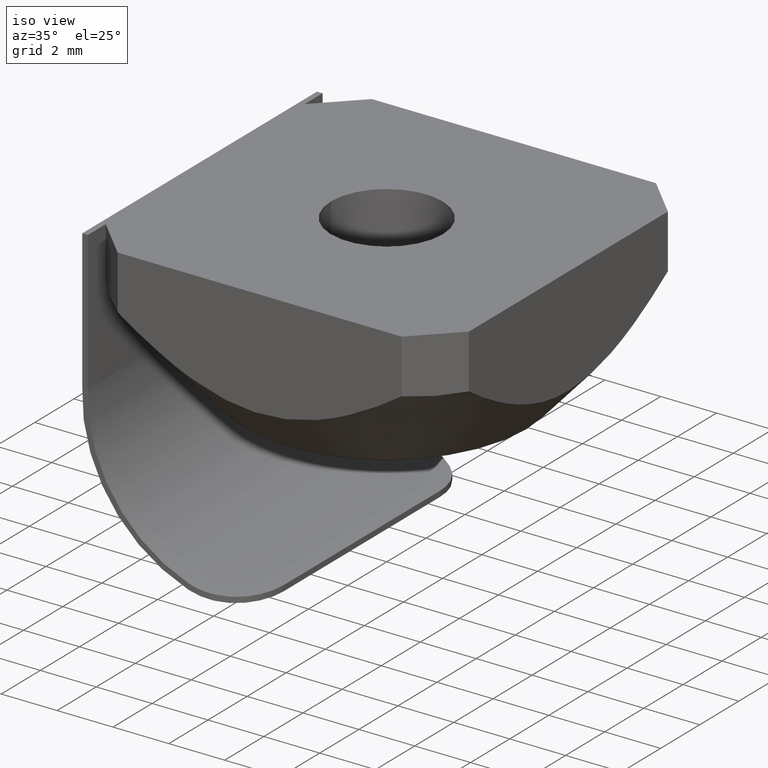
[diagram: clean part render]
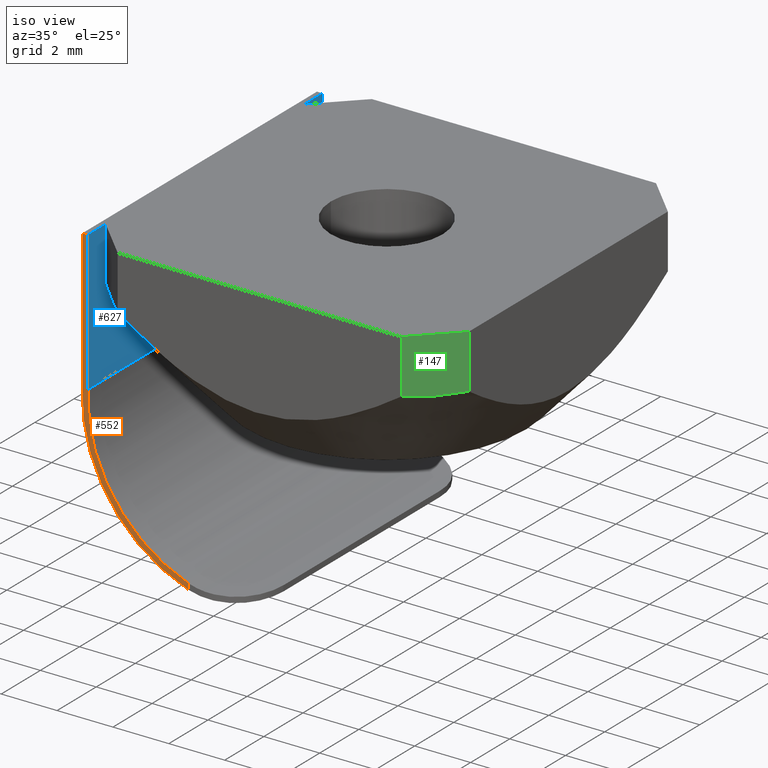
[diagram: same view with three faces highlighted in distinct colors, each labeled with its STEP entity id]
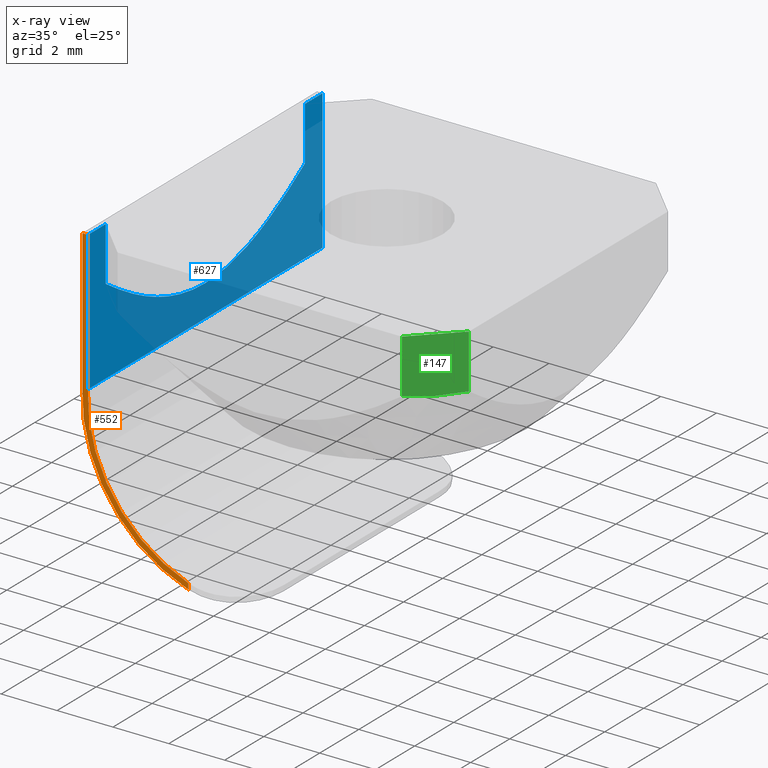
[diagram: x-ray of the same camera — body ghosted, the three highlighted faces saturated]
A machine part, iso view with three faces highlighted in distinct colors.
The next image is the same camera in x-ray (body ghosted, the three faces saturated) — at least one of them is partly hidden behind the body in this view.
Their STEP definitions:

[orange] entity #552 — the highlighted planar face has unit normal (0, 1, 0).
#46 = PLANE ( 'NONE',  #790 ) ;
#88 = EDGE_CURVE ( 'NONE', #795, #431, #632, .T. ) ;
#110 = AXIS2_PLACEMENT_3D ( 'NONE', #612, #556, #348 ) ;
#130 = CARTESIAN_POINT ( 'NONE',  ( -6.700000000000000178, -6.000000000000000888, 0.0000000000000000000 ) ) ;
#154 = CARTESIAN_POINT ( 'NONE',  ( -6.500000000000000888, -6.000000000000000888, -5.000000000000007105 ) ) ;
#178 = CARTESIAN_POINT ( 'NONE',  ( -2.899999999999090861, -6.000000000000000888, -10.30533168883703432 ) ) ;
#179 = ORIENTED_EDGE ( 'NONE', *, *, #830, .F. ) ;
#184 = VECTOR ( 'NONE', #656, 1000.000000000000000 ) ;
#203 = ORIENTED_EDGE ( 'NONE', *, *, #647, .F. ) ;
#234 = ORIENTED_EDGE ( 'NONE', *, *, #867, .F. ) ;
#245 = DIRECTION ( 'NONE',  ( 0.0000000000000000000, -0.0000000000000000000, 1.000000000000000000 ) ) ;
#254 = ORIENTED_EDGE ( 'NONE', *, *, #88, .F. ) ;
#325 = CARTESIAN_POINT ( 'NONE',  ( -6.700000000000000178, -6.000000000000000888, -4.999999999999985789 ) ) ;
#348 = DIRECTION ( 'NONE',  ( 0.0000000000000000000, 0.0000000000000000000, 1.000000000000000000 ) ) ;
#380 = VERTEX_POINT ( 'NONE', #505 ) ;
#402 = DIRECTION ( 'NONE',  ( 0.0000000000000000000, 0.0000000000000000000, 1.000000000000000000 ) ) ;
#406 = DIRECTION ( 'NONE',  ( 1.000000000000000000, 0.0000000000000000000, -0.0000000000000000000 ) ) ;
#431 = VERTEX_POINT ( 'NONE', #178 ) ;
#455 = CARTESIAN_POINT ( 'NONE',  ( -6.700000000000000178, -6.000000000000000888, 0.0000000000000000000 ) ) ;
#476 = CIRCLE ( 'NONE', #110, 5.574159195229042574 ) ;
#505 = CARTESIAN_POINT ( 'NONE',  ( -6.500000000000001776, -6.000000000000000888, 0.0000000000000000000 ) ) ;
#508 = EDGE_CURVE ( 'NONE', #380, #795, #650, .T. ) ;
#516 = CARTESIAN_POINT ( 'NONE',  ( -2.899999999999090861, -6.000000000000000888, -10.51649273543432273 ) ) ;
#524 = ORIENTED_EDGE ( 'NONE', *, *, #508, .F. ) ;
#525 = CARTESIAN_POINT ( 'NONE',  ( -5.221683483938816650, -6.000000000000000888, -6.411504627746288598 ) ) ;
#531 = FACE_OUTER_BOUND ( 'NONE', #870, .T. ) ;
#534 = VERTEX_POINT ( 'NONE', #455 ) ;
#548 = DIRECTION ( 'NONE',  ( -0.0000000000000000000, -1.000000000000000000, -0.0000000000000000000 ) ) ;
#552 = ADVANCED_FACE ( 'NONE', ( #531 ), #46, .F. ) ;
#556 = DIRECTION ( 'NONE',  ( 0.0000000000000000000, 1.000000000000000000, 0.0000000000000000000 ) ) ;
#566 = VECTOR ( 'NONE', #402, 1000.000000000000000 ) ;
#576 = VERTEX_POINT ( 'NONE', #325 ) ;
#584 = LINE ( 'NONE', #130, #566 ) ;
#588 = DIRECTION ( 'NONE',  ( 0.0000000000000000000, 1.000000000000000000, 0.0000000000000000000 ) ) ;
#599 = VERTEX_POINT ( 'NONE', #516 ) ;
#612 = CARTESIAN_POINT ( 'NONE',  ( -1.130613297613433987, -6.000000000000000888, -5.230613297613471602 ) ) ;
#632 = CIRCLE ( 'NONE', #679, 5.374336801206437642 ) ;
#647 = EDGE_CURVE ( 'NONE', #431, #599, #743, .T. ) ;
#650 = LINE ( 'NONE', #861, #184 ) ;
#653 = ORIENTED_EDGE ( 'NONE', *, *, #662, .F. ) ;
#656 = DIRECTION ( 'NONE',  ( 0.0000000000000000000, 0.0000000000000000000, -1.000000000000000000 ) ) ;
#662 = EDGE_CURVE ( 'NONE', #576, #534, #584, .T. ) ;
#679 = AXIS2_PLACEMENT_3D ( 'NONE', #818, #548, #689 ) ;
#689 = DIRECTION ( 'NONE',  ( 0.0000000000000000000, 0.0000000000000000000, 1.000000000000000000 ) ) ;
#700 = VECTOR ( 'NONE', #885, 1000.000000000000000 ) ;
#743 = LINE ( 'NONE', #817, #700 ) ;
#790 = AXIS2_PLACEMENT_3D ( 'NONE', #525, #588, #245 ) ;
#795 = VERTEX_POINT ( 'NONE', #154 ) ;
#798 = VECTOR ( 'NONE', #406, 1000.000000000000000 ) ;
#817 = CARTESIAN_POINT ( 'NONE',  ( -2.899999999999091749, -6.000000000000000888, -8.605752313873143322 ) ) ;
#818 = CARTESIAN_POINT ( 'NONE',  ( -1.130613297613433987, -6.000000000000000888, -5.230613297613471602 ) ) ;
#820 = CARTESIAN_POINT ( 'NONE',  ( -5.221683483938816650, -6.000000000000000888, 0.0000000000000000000 ) ) ;
#830 = EDGE_CURVE ( 'NONE', #599, #576, #476, .T. ) ;
#845 = LINE ( 'NONE', #820, #798 ) ;
#861 = CARTESIAN_POINT ( 'NONE',  ( -6.500000000000000888, -6.000000000000000888, -4.999999999999999112 ) ) ;
#867 = EDGE_CURVE ( 'NONE', #534, #380, #845, .T. ) ;
#870 = EDGE_LOOP ( 'NONE', ( #254, #524, #234, #653, #179, #203 ) ) ;
#885 = DIRECTION ( 'NONE',  ( 0.0000000000000000000, 0.0000000000000000000, -1.000000000000000000 ) ) ;

[blue] entity #627 — the highlighted planar face has unit normal (1, -0, 0).
#26 = CARTESIAN_POINT ( 'NONE',  ( -6.500000000000000888, 3.064398180133085755E-15, -3.855463141347039269 ) ) ;
#31 = CARTESIAN_POINT ( 'NONE',  ( -6.500000000000002665, -4.314590746540053701, -2.436610204660846879 ) ) ;
#36 = CARTESIAN_POINT ( 'NONE',  ( -6.499999999999999112, 5.085786437626910406, 0.0000000000000000000 ) ) ;
#43 = VERTEX_POINT ( 'NONE', #335 ) ;
#52 = VECTOR ( 'NONE', #109, 1000.000000000000000 ) ;
#63 = CARTESIAN_POINT ( 'NONE',  ( -6.500000000000001776, 3.107041528813947462, -3.094886144136435480 ) ) ;
#64 = LINE ( 'NONE', #607, #199 ) ;
#66 = LINE ( 'NONE', #422, #421 ) ;
#77 = DIRECTION ( 'NONE',  ( -0.0000000000000000000, -1.000000000000000000, -0.0000000000000000000 ) ) ;
#81 = ORIENTED_EDGE ( 'NONE', *, *, #637, .T. ) ;
#109 = DIRECTION ( 'NONE',  ( -0.0000000000000000000, -1.000000000000000000, -0.0000000000000000000 ) ) ;
#118 = DIRECTION ( 'NONE',  ( 0.0000000000000000000, 1.000000000000000000, 0.0000000000000000000 ) ) ;
#123 = DIRECTION ( 'NONE',  ( 0.0000000000000000000, 0.0000000000000000000, -1.000000000000000000 ) ) ;
#132 = CARTESIAN_POINT ( 'NONE',  ( -6.500000000000000888, 2.258115939526438520, -3.449951148689369695 ) ) ;
#154 = CARTESIAN_POINT ( 'NONE',  ( -6.500000000000000888, -6.000000000000000888, -5.000000000000007105 ) ) ;
#160 = CARTESIAN_POINT ( 'NONE',  ( -6.500000000000000888, 3.064398180133085755E-15, -3.855463141347039269 ) ) ;
#161 = VECTOR ( 'NONE', #118, 1000.000000000000000 ) ;
#175 = CARTESIAN_POINT ( 'NONE',  ( -6.500000000000000888, 0.0000000000000000000, 0.0000000000000000000 ) ) ;
#184 = VECTOR ( 'NONE', #656, 1000.000000000000000 ) ;
#190 = EDGE_CURVE ( 'NONE', #827, #453, #429, .T. ) ;
#199 = VECTOR ( 'NONE', #813, 1000.000000000000000 ) ;
#204 = B_SPLINE_CURVE_WITH_KNOTS ( 'NONE', 3,
 ( #807, #887, #746, #395, #132, #63, #460, #462, #457, #610 ),
 .UNSPECIFIED., .F., .F.,
 ( 4, 2, 2, 2, 4 ),
 ( 0.005500282510485713164, 0.006875464031092158763, 0.008250645551698604363, 0.009625827072305050830, 0.01100100859291149556 ),
 .UNSPECIFIED. ) ;
#205 = EDGE_CURVE ( 'NONE', #303, #674, #268, .T. ) ;
#211 = ORIENTED_EDGE ( 'NONE', *, *, #205, .F. ) ;
#220 = LINE ( 'NONE', #175, #52 ) ;
#228 = CARTESIAN_POINT ( 'NONE',  ( -6.500000000000000888, -3.107104350552365002, -3.094856037944705207 ) ) ;
#235 = CARTESIAN_POINT ( 'NONE',  ( -6.500000000000001776, -2.258188599350608339, -3.449924588806682735 ) ) ;
#253 = VECTOR ( 'NONE', #77, 1000.000000000000000 ) ;
#265 = CARTESIAN_POINT ( 'NONE',  ( -6.499999993186322378, -5.085786460416152899, -1.933334192774046389 ) ) ;
#268 = LINE ( 'NONE', #351, #521 ) ;
#292 = ORIENTED_EDGE ( 'NONE', *, *, #723, .F. ) ;
#300 = EDGE_CURVE ( 'NONE', #374, #453, #66, .T. ) ;
#303 = VERTEX_POINT ( 'NONE', #357 ) ;
#308 = FACE_OUTER_BOUND ( 'NONE', #703, .T. ) ;
#313 = PLANE ( 'NONE',  #358 ) ;
#316 = CARTESIAN_POINT ( 'NONE',  ( -6.500000000000000888, 0.0000000000000000000, -4.999999999999999112 ) ) ;
#323 = CARTESIAN_POINT ( 'NONE',  ( -6.500000000000000888, 0.0000000000000000000, -4.999999999999999112 ) ) ;
#335 = CARTESIAN_POINT ( 'NONE',  ( -6.500000000000000888, 6.000000000000000888, -5.000000000000007105 ) ) ;
#345 = ORIENTED_EDGE ( 'NONE', *, *, #300, .F. ) ;
#351 = CARTESIAN_POINT ( 'NONE',  ( -6.500000000000000888, -5.085786437626906853, 0.0000000000000000000 ) ) ;
#356 = DIRECTION ( 'NONE',  ( 0.0000000000000000000, 0.0000000000000000000, 1.000000000000000000 ) ) ;
#357 = CARTESIAN_POINT ( 'NONE',  ( -6.500000000000001776, -5.085786437626905965, 0.0000000000000000000 ) ) ;
#358 = AXIS2_PLACEMENT_3D ( 'NONE', #316, #381, #123 ) ;
#365 = ORIENTED_EDGE ( 'NONE', *, *, #680, .T. ) ;
#374 = VERTEX_POINT ( 'NONE', #777 ) ;
#380 = VERTEX_POINT ( 'NONE', #505 ) ;
#381 = DIRECTION ( 'NONE',  ( 1.000000000000000000, -0.0000000000000000000, 0.0000000000000000000 ) ) ;
#395 = CARTESIAN_POINT ( 'NONE',  ( -6.500000000000000000, 1.815600802417214776, -3.598271844878063952 ) ) ;
#421 = VECTOR ( 'NONE', #356, 1000.000000000000000 ) ;
#422 = CARTESIAN_POINT ( 'NONE',  ( -6.499999999999999112, 5.085786437626910406, 0.0000000000000000000 ) ) ;
#427 = EDGE_CURVE ( 'NONE', #674, #838, #665, .T. ) ;
#429 = LINE ( 'NONE', #482, #253 ) ;
#432 = CARTESIAN_POINT ( 'NONE',  ( -6.500000000000000888, -1.815724355571117998, -3.598234518682033478 ) ) ;
#435 = CARTESIAN_POINT ( 'NONE',  ( -6.499999999966563635, -4.703623663799145760, -2.191522623682523818 ) ) ;
#443 = ORIENTED_EDGE ( 'NONE', *, *, #447, .T. ) ;
#447 = EDGE_CURVE ( 'NONE', #303, #380, #220, .T. ) ;
#453 = VERTEX_POINT ( 'NONE', #36 ) ;
#454 = ORIENTED_EDGE ( 'NONE', *, *, #508, .T. ) ;
#457 = CARTESIAN_POINT ( 'NONE',  ( -6.500000000000000888, 4.703607865908491448, -2.191533292728968352 ) ) ;
#460 = CARTESIAN_POINT ( 'NONE',  ( -6.500000000000000888, 3.516244414295480958, -2.888242049458875194 ) ) ;
#462 = CARTESIAN_POINT ( 'NONE',  ( -6.500000000000000000, 4.314560767063976066, -2.436628929867394877 ) ) ;
#482 = CARTESIAN_POINT ( 'NONE',  ( -6.500000000000000888, 0.0000000000000000000, 0.0000000000000000000 ) ) ;
#505 = CARTESIAN_POINT ( 'NONE',  ( -6.500000000000001776, -6.000000000000000888, 0.0000000000000000000 ) ) ;
#508 = EDGE_CURVE ( 'NONE', #380, #795, #650, .T. ) ;
#521 = VECTOR ( 'NONE', #823, 1000.000000000000000 ) ;
#523 = ORIENTED_EDGE ( 'NONE', *, *, #427, .F. ) ;
#555 = LINE ( 'NONE', #323, #161 ) ;
#572 = CARTESIAN_POINT ( 'NONE',  ( -6.500000000000000888, -0.4650942909995222085, -3.855463141347039269 ) ) ;
#574 = CARTESIAN_POINT ( 'NONE',  ( -6.500000000000000000, -3.516297880510937723, -2.888213568672117315 ) ) ;
#581 = CARTESIAN_POINT ( 'NONE',  ( -6.500000000000000000, -0.9207822221066512824, -3.800343511899493265 ) ) ;
#607 = CARTESIAN_POINT ( 'NONE',  ( -6.500000000000000888, 6.000000000000000888, -4.999999999999999112 ) ) ;
#610 = CARTESIAN_POINT ( 'NONE',  ( -6.500000000000000000, 5.085786390128566481, -1.933334234376848704 ) ) ;
#627 = ADVANCED_FACE ( 'NONE', ( #308 ), #313, .T. ) ;
#637 = EDGE_CURVE ( 'NONE', #795, #43, #555, .T. ) ;
#650 = LINE ( 'NONE', #861, #184 ) ;
#656 = DIRECTION ( 'NONE',  ( 0.0000000000000000000, 0.0000000000000000000, -1.000000000000000000 ) ) ;
#665 = B_SPLINE_CURVE_WITH_KNOTS ( 'NONE', 3,
 ( #857, #435, #31, #574, #228, #235, #432, #581, #572, #26 ),
 .UNSPECIFIED., .F., .F.,
 ( 4, 2, 2, 2, 4 ),
 ( 1.371897704505000388E-11, 0.001375070637910661081, 0.002750141262102344820, 0.004125211886294029642, 0.005500282510485713164 ),
 .UNSPECIFIED. ) ;
#674 = VERTEX_POINT ( 'NONE', #265 ) ;
#680 = EDGE_CURVE ( 'NONE', #43, #827, #64, .T. ) ;
#703 = EDGE_LOOP ( 'NONE', ( #345, #292, #523, #211, #443, #454, #81, #365, #783 ) ) ;
#723 = EDGE_CURVE ( 'NONE', #838, #374, #204, .T. ) ;
#746 = CARTESIAN_POINT ( 'NONE',  ( -6.500000000000001776, 0.9206392489088874864, -3.800366373796787656 ) ) ;
#777 = CARTESIAN_POINT ( 'NONE',  ( -6.500000000000000000, 5.085786390128566481, -1.933334234376848704 ) ) ;
#783 = ORIENTED_EDGE ( 'NONE', *, *, #190, .T. ) ;
#795 = VERTEX_POINT ( 'NONE', #154 ) ;
#807 = CARTESIAN_POINT ( 'NONE',  ( -6.500000000000000888, 3.064398180133085755E-15, -3.855463141347039269 ) ) ;
#813 = DIRECTION ( 'NONE',  ( -0.0000000000000000000, -0.0000000000000000000, 1.000000000000000000 ) ) ;
#823 = DIRECTION ( 'NONE',  ( -0.0000000000000000000, -0.0000000000000000000, -1.000000000000000000 ) ) ;
#827 = VERTEX_POINT ( 'NONE', #829 ) ;
#829 = CARTESIAN_POINT ( 'NONE',  ( -6.500000000000001776, 6.000000000000000888, 0.0000000000000000000 ) ) ;
#838 = VERTEX_POINT ( 'NONE', #160 ) ;
#857 = CARTESIAN_POINT ( 'NONE',  ( -6.499999993186322378, -5.085786460416152899, -1.933334192774046389 ) ) ;
#861 = CARTESIAN_POINT ( 'NONE',  ( -6.500000000000000888, -6.000000000000000888, -4.999999999999999112 ) ) ;
#887 = CARTESIAN_POINT ( 'NONE',  ( -6.500000000000000000, 0.4651317998288859723, -3.855463141347039269 ) ) ;

[green] entity #147 — the highlighted planar face has unit normal (0.7071, -0.7071, 0).
#14 = CARTESIAN_POINT ( 'NONE',  ( 6.500000000012471801, -5.085786437677110250, -1.933334202242371402 ) ) ;
#30 = ORIENTED_EDGE ( 'NONE', *, *, #587, .T. ) ;
#83 = VERTEX_POINT ( 'NONE', #389 ) ;
#146 = DIRECTION ( 'NONE',  ( 0.7071067811865475727, -0.7071067811865475727, 0.0000000000000000000 ) ) ;
#147 = ADVANCED_FACE ( 'NONE', ( #672 ), #825, .T. ) ;
#148 = CARTESIAN_POINT ( 'NONE',  ( 6.028595479244057032, -5.557190958382852486, -2.021894486498649446 ) ) ;
#153 = ORIENTED_EDGE ( 'NONE', *, *, #542, .F. ) ;
#169 = LINE ( 'NONE', #445, #191 ) ;
#188 = DIRECTION ( 'NONE',  ( 0.7071067811865473507, 0.7071067811865477948, 0.0000000000000000000 ) ) ;
#191 = VECTOR ( 'NONE', #440, 1000.000000000000000 ) ;
#216 = CARTESIAN_POINT ( 'NONE',  ( 5.085786437677106697, -6.500000000012474466, -1.933334202242371402 ) ) ;
#259 = VERTEX_POINT ( 'NONE', #14 ) ;
#317 = B_SPLINE_CURVE_WITH_KNOTS ( 'NONE', 3,
 ( #216, #765, #148, #834 ),
 .UNSPECIFIED., .F., .F.,
 ( 4, 4 ),
 ( 6.051050471646755322E-14, 0.002000000000007151873 ),
 .UNSPECIFIED. ) ;
#342 = DIRECTION ( 'NONE',  ( 0.7071067811865474617, 0.7071067811865474617, 0.0000000000000000000 ) ) ;
#389 = CARTESIAN_POINT ( 'NONE',  ( 5.085786437677106697, -6.500000000012474466, -1.933334202242371402 ) ) ;
#390 = DIRECTION ( 'NONE',  ( 0.0000000000000000000, 0.0000000000000000000, -1.000000000000000000 ) ) ;
#391 = LINE ( 'NONE', #863, #712 ) ;
#440 = DIRECTION ( 'NONE',  ( 0.0000000000000000000, -0.0000000000000000000, -1.000000000000000000 ) ) ;
#445 = CARTESIAN_POINT ( 'NONE',  ( 5.085786437626905965, -6.500000000000003553, 0.0000000000000000000 ) ) ;
#510 = VECTOR ( 'NONE', #390, 1000.000000000000000 ) ;
#538 = CARTESIAN_POINT ( 'NONE',  ( 5.085786437626906853, -6.500000000000002665, 0.0000000000000000000 ) ) ;
#540 = CARTESIAN_POINT ( 'NONE',  ( 6.500000000000000888, -5.085786437626907741, 0.0000000000000000000 ) ) ;
#542 = EDGE_CURVE ( 'NONE', #763, #713, #391, .T. ) ;
#577 = EDGE_LOOP ( 'NONE', ( #153, #30, #686, #641 ) ) ;
#587 = EDGE_CURVE ( 'NONE', #763, #83, #169, .T. ) ;
#614 = CARTESIAN_POINT ( 'NONE',  ( 5.085786437626905965, -6.500000000000003553, 0.0000000000000000000 ) ) ;
#617 = AXIS2_PLACEMENT_3D ( 'NONE', #614, #146, #342 ) ;
#641 = ORIENTED_EDGE ( 'NONE', *, *, #755, .F. ) ;
#672 = FACE_OUTER_BOUND ( 'NONE', #577, .T. ) ;
#686 = ORIENTED_EDGE ( 'NONE', *, *, #802, .T. ) ;
#712 = VECTOR ( 'NONE', #188, 1000.000000000000000 ) ;
#713 = VERTEX_POINT ( 'NONE', #540 ) ;
#755 = EDGE_CURVE ( 'NONE', #713, #259, #865, .T. ) ;
#763 = VERTEX_POINT ( 'NONE', #538 ) ;
#765 = CARTESIAN_POINT ( 'NONE',  ( 5.557190958361344357, -6.028595479226081189, -2.021894486487701315 ) ) ;
#802 = EDGE_CURVE ( 'NONE', #83, #259, #317, .T. ) ;
#805 = CARTESIAN_POINT ( 'NONE',  ( 6.500000000000000888, -5.085786437626907741, 0.0000000000000000000 ) ) ;
#825 = PLANE ( 'NONE',  #617 ) ;
#834 = CARTESIAN_POINT ( 'NONE',  ( 6.500000000012471801, -5.085786437677110250, -1.933334202242371402 ) ) ;
#863 = CARTESIAN_POINT ( 'NONE',  ( 5.085786437626905965, -6.500000000000003553, 0.0000000000000000000 ) ) ;
#865 = LINE ( 'NONE', #805, #510 ) ;